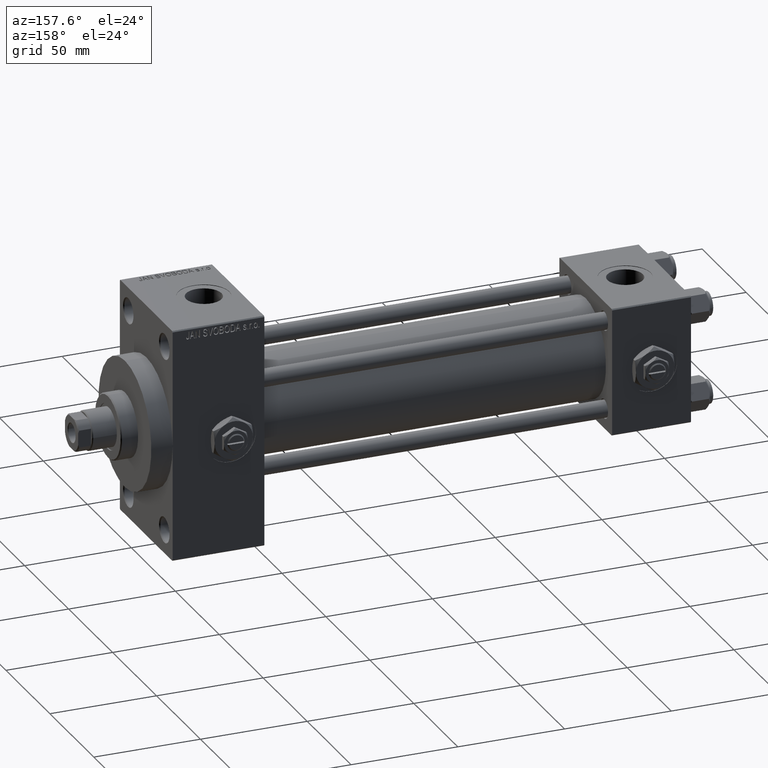
[diagram: clean part render]
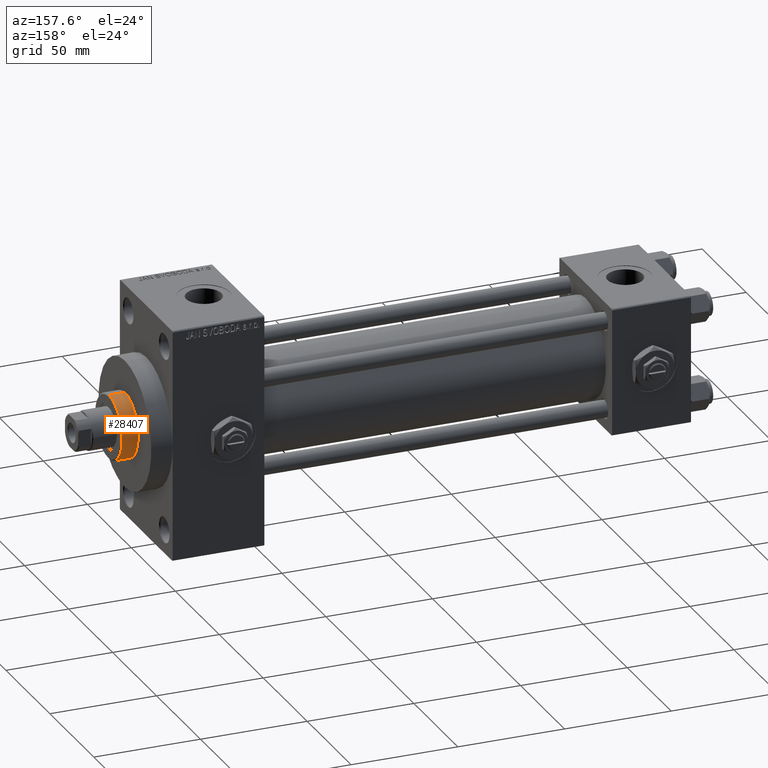
[diagram: same view with one face highlighted and labeled with its STEP entity id]
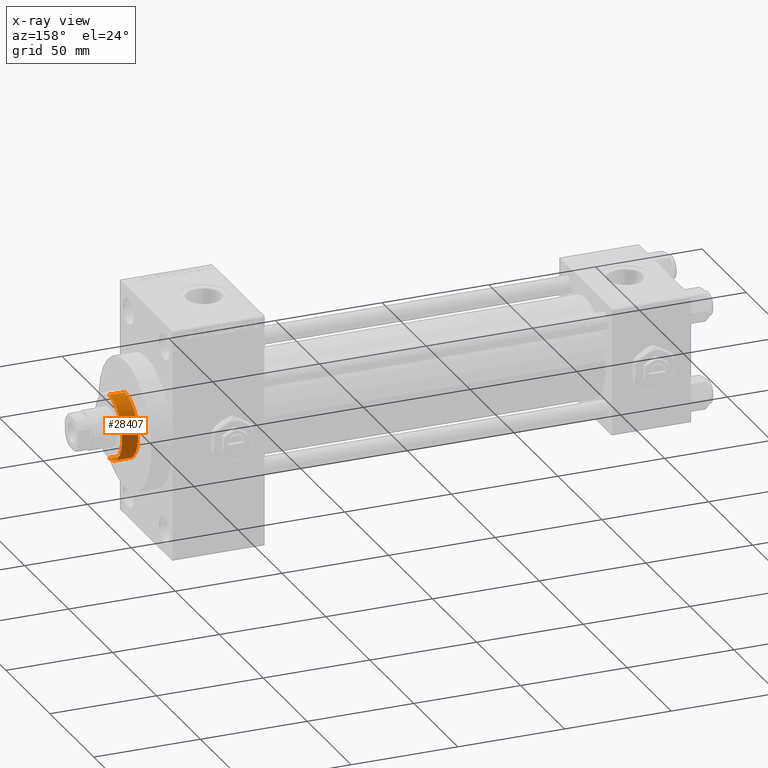
[diagram: x-ray of the same camera — body ghosted, the highlighted face saturated]
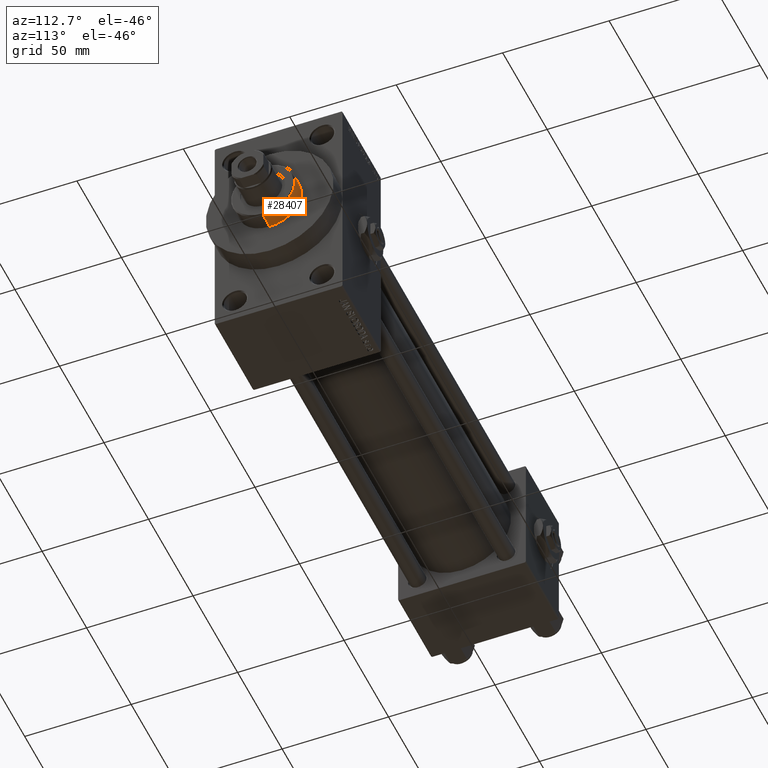
[diagram: same view with one face highlighted and labeled with its STEP entity id]
A machine part, auxiliary view. The second image highlights one B-rep face of the part: STEP entity #28407.
The next image is the same camera in x-ray: the body ghosted, the highlighted face saturated — about 0% of this face is hidden behind the body in this view.
A second angle (auxiliary view) of the same face is appended — the face is thin or edge-on in the first view.
In plain terms, the highlighted cylindrical surface (edge-blend (fillet) strip) has radius 15 mm, axis along (-1, 0, 0).
Its self-contained STEP definition (entity closure, byte-faithful):
#110 = CIRCLE ( 'NONE', #22419, 15.00000000000000000 ) ;
#703 = EDGE_CURVE ( 'NONE', #35606, #34226, #110, .T. ) ;
#4056 = DIRECTION ( 'NONE',  ( -0.000000000000000000, -0.000000000000000000, -1.000000000000000000 ) ) ;
#6506 = DIRECTION ( 'NONE',  ( 1.000000000000000000, 0.000000000000000000, 0.000000000000000000 ) ) ;
#7806 = CARTESIAN_POINT ( 'NONE',  ( 0.000000000000000000, 0.000000000000000000, 51.25999999999999801 ) ) ;
#8436 = ORIENTED_EDGE ( 'NONE', *, *, #37869, .F. ) ;
#8459 = ORIENTED_EDGE ( 'NONE', *, *, #703, .T. ) ;
#9991 = CARTESIAN_POINT ( 'NONE',  ( 0.000000000000000000, 0.000000000000000000, 43.25999999999999801 ) ) ;
#10209 = DIRECTION ( 'NONE',  ( -0.000000000000000000, -0.000000000000000000, -1.000000000000000000 ) ) ;
#12451 = EDGE_CURVE ( 'NONE', #20559, #35606, #29158, .T. ) ;
#14716 = DIRECTION ( 'NONE',  ( 0.000000000000000000, 0.000000000000000000, -1.000000000000000000 ) ) ;
#14875 = ORIENTED_EDGE ( 'NONE', *, *, #12451, .T. ) ;
#17947 = DIRECTION ( 'NONE',  ( 0.000000000000000000, 0.000000000000000000, 1.000000000000000000 ) ) ;
#18005 = VERTEX_POINT ( 'NONE', #36704 ) ;
#19490 = VECTOR ( 'NONE', #10209, 1000.000000000000000 ) ;
#20559 = VERTEX_POINT ( 'NONE', #29129 ) ;
#22419 = AXIS2_PLACEMENT_3D ( 'NONE', #9991, #17947, #36149 ) ;
#23067 = AXIS2_PLACEMENT_3D ( 'NONE', #7806, #4056, #38456 ) ;
#23244 = FACE_OUTER_BOUND ( 'NONE', #33485, .T. ) ;
#24859 = AXIS2_PLACEMENT_3D ( 'NONE', #29198, #14716, #6506 ) ;
#26415 = CARTESIAN_POINT ( 'NONE',  ( 15.00000000000000000, 1.836970198721029589E-15, 51.25999999999999801 ) ) ;
#28407 = ADVANCED_FACE ( 'NONE', ( #23244 ), #30974, .T. ) ;
#29129 = CARTESIAN_POINT ( 'NONE',  ( -15.00000000000000000, 0.000000000000000000, 50.75999999999998380 ) ) ;
#29158 = LINE ( 'NONE', #44360, #19490 ) ;
#29198 = CARTESIAN_POINT ( 'NONE',  ( 0.000000000000000000, 0.000000000000000000, 50.75999999999998380 ) ) ;
#29413 = CARTESIAN_POINT ( 'NONE',  ( 15.00000000000000000, 1.836970198721029589E-15, 43.25999999999999801 ) ) ;
#30648 = LINE ( 'NONE', #26415, #46372 ) ;
#30974 = CYLINDRICAL_SURFACE ( 'NONE', #23067, 15.00000000000000000 ) ;
#33181 = ORIENTED_EDGE ( 'NONE', *, *, #38556, .T. ) ;
#33485 = EDGE_LOOP ( 'NONE', ( #8436, #33181, #14875, #8459 ) ) ;
#34226 = VERTEX_POINT ( 'NONE', #29413 ) ;
#35606 = VERTEX_POINT ( 'NONE', #45201 ) ;
#36149 = DIRECTION ( 'NONE',  ( 1.000000000000000000, 0.000000000000000000, 0.000000000000000000 ) ) ;
#36704 = CARTESIAN_POINT ( 'NONE',  ( 15.00000000000000000, 1.836970198721029589E-15, 50.75999999999998380 ) ) ;
#37869 = EDGE_CURVE ( 'NONE', #18005, #34226, #30648, .T. ) ;
#38456 = DIRECTION ( 'NONE',  ( -1.000000000000000000, 0.000000000000000000, 0.000000000000000000 ) ) ;
#38556 = EDGE_CURVE ( 'NONE', #18005, #20559, #44791, .T. ) ;
#41635 = DIRECTION ( 'NONE',  ( -0.000000000000000000, -0.000000000000000000, -1.000000000000000000 ) ) ;
#44360 = CARTESIAN_POINT ( 'NONE',  ( -15.00000000000000000, 0.000000000000000000, 51.25999999999999801 ) ) ;
#44791 = CIRCLE ( 'NONE', #24859, 15.00000000000000000 ) ;
#45201 = CARTESIAN_POINT ( 'NONE',  ( -15.00000000000000000, 0.000000000000000000, 43.25999999999999801 ) ) ;
#46372 = VECTOR ( 'NONE', #41635, 1000.000000000000000 ) ;